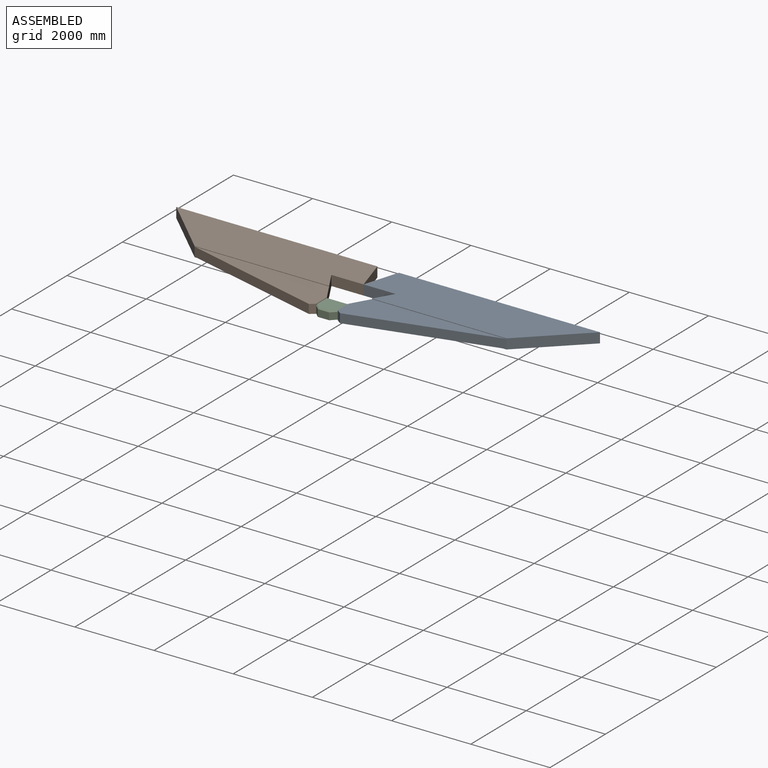
[diagram: assembled view]
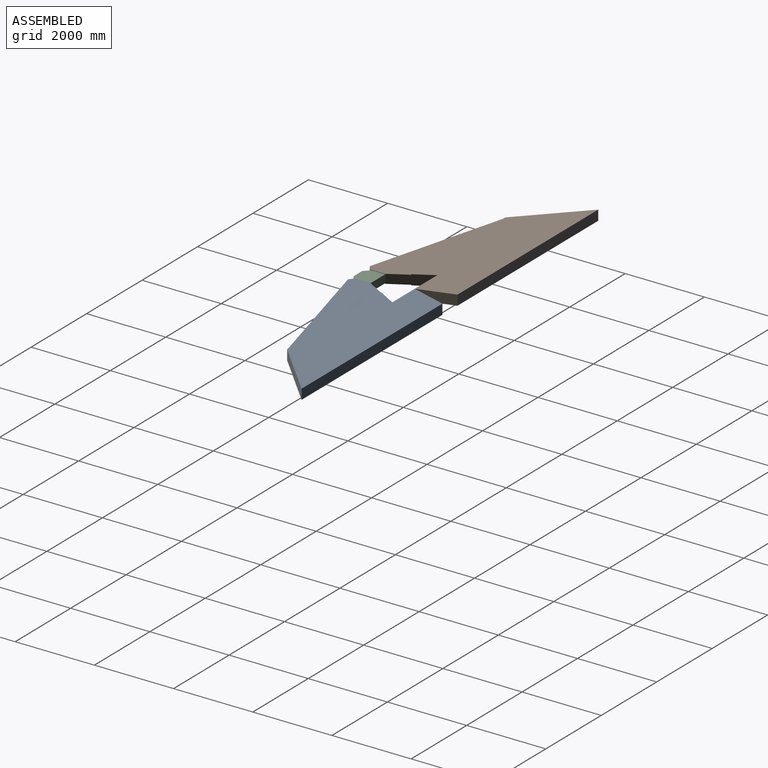
[diagram: assembled view, second angle]
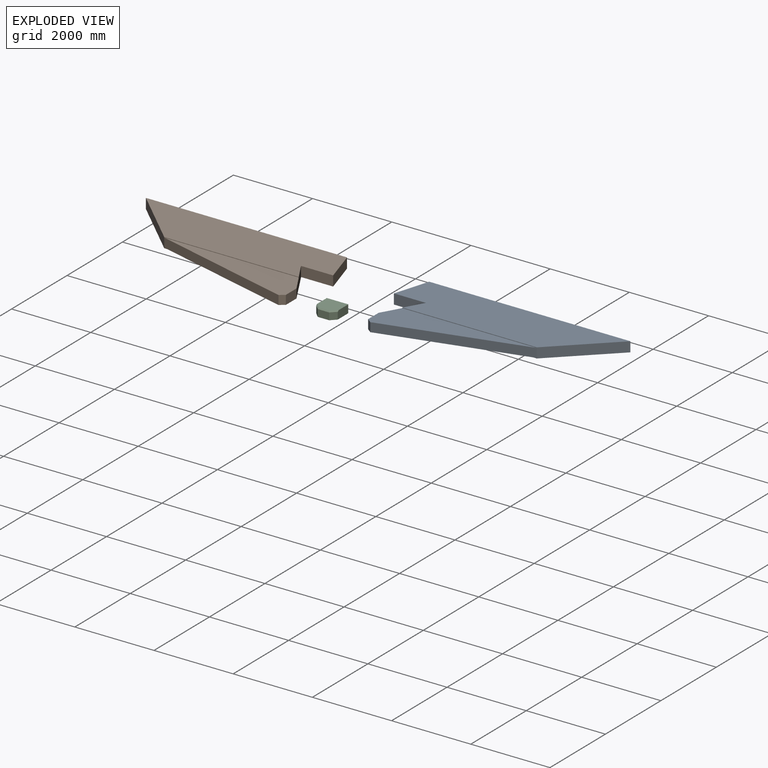
[diagram: exploded view]
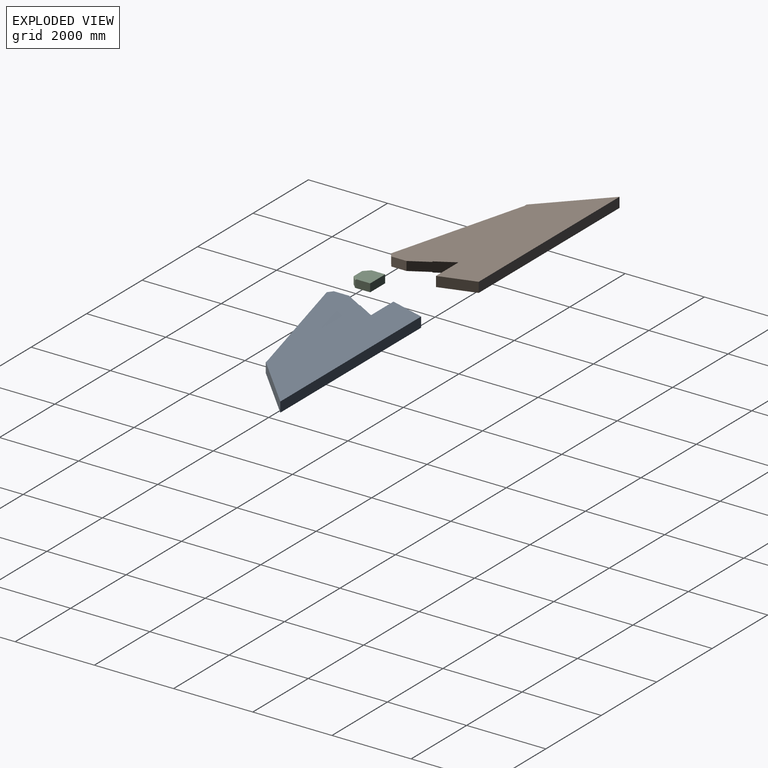
[diagram: exploded view, second angle]
ASSEMBLY  parts=3 mates=2
PART A: 14 faces, bbox 5350.9x2299x254 mm
  f0: plane 3396.28x12.7mm, normal (0,-1,0), area 43132.8mm2, adj f2,f4,f7,f11
  f1: plane 811.08x254mm, normal (0,-1,0), area 206013.8mm2, adj f2,f6,f7,f12
  f2: plane 935.58x540.16mm, normal (-0.87,0.5,0), area 260695mm2, adj f0,f1,f3,f6,f7,f8,f10,f11
  f3: plane 3396.28x12.7mm, normal (0,-1,0), area 43132.8mm2, adj f2,f4,f6,f10
  f4: plane 1413.92x1356.31mm, normal (0.69,-0.72,0), area 497654.3mm2, adj f0,f3,f5,f6,f7,f9
  f5: plane 5080x254mm, normal (0,1,0), area 1290320mm2, adj f4,f6,f7,f12
  f6: plane 5350.92x1356.31mm, normal (0,0,1), area 5861835.6mm2, adj f1,f2,f3,f4,f5,f12
  f7: plane 5350.92x1356.31mm, normal (0,0,-1), area 5861835.6mm2, adj f0,f1,f2,f4,f5,f12
  f8: plane 381x228.6mm, normal (-1,0,0), area 87096.6mm2, adj f2,f10,f11,f13
  f9: plane 3543.35x942.66mm, normal (0.26,-0.97,0), area 838184mm2, adj f4,f10,f11,f13
  f10: plane 3666.08x942.66mm, normal (0,0,1), area 1716944.3mm2, adj f2,f3,f8,f9,f13
  f11: plane 3666.08x942.66mm, normal (0,0,-1), area 1716944.3mm2, adj f0,f2,f8,f9,f13
  f12: plane 888.03x270.92mm, normal (-0.96,0.29,0), area 235823.1mm2, adj f1,f5,f6,f7
  f13: plane 228.6x122.73mm, normal (-0.61,-0.79,0), area 35388.5mm2, adj f8,f9,f10,f11
PART B: 14 faces, bbox 5350.9x2299x254 mm
  f0: plane 3396.28x12.7mm, normal (0,-1,0), area 43132.8mm2, adj f2,f5,f7,f11
  f1: plane 3396.28x12.7mm, normal (0,-1,0), area 43132.8mm2, adj f2,f5,f6,f10
  f2: plane 935.58x540.16mm, normal (0.87,0.5,0), area 260695mm2, adj f0,f1,f3,f6,f7,f9,f10,f11
  f3: plane 811.08x254mm, normal (0,-1,0), area 206013.8mm2, adj f2,f6,f7,f12
  f4: plane 5080x254mm, normal (0,1,0), area 1290320mm2, adj f5,f6,f7,f12
  f5: plane 1413.92x1356.31mm, normal (-0.69,-0.72,0), area 497654.3mm2, adj f0,f1,f4,f6,f7,f8
  f6: plane 5350.92x1356.31mm, normal (0,0,1), area 5861835.6mm2, adj f1,f2,f3,f4,f5,f12
  f7: plane 5350.92x1356.31mm, normal (0,0,-1), area 5861835.6mm2, adj f0,f2,f3,f4,f5,f12
  f8: plane 3543.35x942.66mm, normal (-0.26,-0.97,0), area 838184mm2, adj f5,f10,f11,f13
  f9: plane 381x228.6mm, normal (1,0,0), area 87096.6mm2, adj f2,f10,f11,f13
  f10: plane 3666.08x942.66mm, normal (0,0,1), area 1716944.3mm2, adj f1,f2,f8,f9,f13
  f11: plane 3666.08x942.66mm, normal (0,0,-1), area 1716944.3mm2, adj f0,f2,f8,f9,f13
  f12: plane 888.03x270.92mm, normal (0.96,0.29,0), area 235823.1mm2, adj f3,f4,f6,f7
  f13: plane 228.6x122.73mm, normal (0.61,-0.79,0), area 35388.5mm2, adj f8,f9,f10,f11
PART C: 11 faces, bbox 541.8x508x203.2 mm
  f0: plane 381x203.2mm, normal (1,0,0), area 76963mm2, adj f1,f4,f5,f7,f9
  f1: plane 541.84x203.2mm, normal (0,1,0), area 110101.4mm2, adj f0,f2,f4,f5
  f2: plane 381x203.2mm, normal (-1,0,0), area 76963mm2, adj f1,f4,f5,f6,f8
  f3: plane 287.84x177.8mm, normal (0,-1,0), area 51177.5mm2, adj f5,f6,f7,f10
  f4: plane 541.84x482.6mm, normal (0,0,1), area 242578.7mm2, adj f0,f1,f2,f8,f9,f10
  f5: plane 541.84x508mm, normal (0,0,-1), area 259124.4mm2, adj f0,f1,f2,f3,f6,f7
  f6: plane 177.8x127mm, normal (-0.71,-0.71,0), area 31933.8mm2, adj f2,f3,f5,f8
  f7: plane 177.8x127mm, normal (0.71,-0.71,0), area 31933.8mm2, adj f0,f3,f5,f9
  f8: plane 162.92x137.52mm, normal (-0.5,-0.5,0.71), area 6718.8mm2, adj f2,f4,f6,f10
  f9: plane 162.92x137.52mm, normal (0.5,-0.5,0.71), area 6718.8mm2, adj f0,f4,f7,f10
  f10: plane 287.84x25.4mm, normal (0,-0.71,0.71), area 9961.5mm2, adj f3,f4,f8,f9
PLACE A t=(340.38,-540.34,57.85)mm
PLACE B t=(340.38,-540.34,57.85)mm
PLACE C t=(340.38,-541.4,58.4)mm
MATE fastened A.f8 <-> C.f0  axis (-1,0,0) through (611.29,-1198.15,57.85)mm
MATE fastened B.f9 <-> C.f2  axis (1,0,0) through (69.46,-1198.15,57.85)mm
